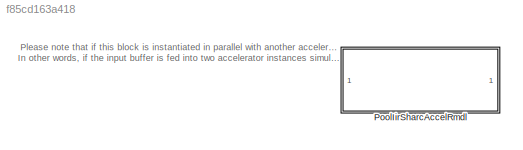
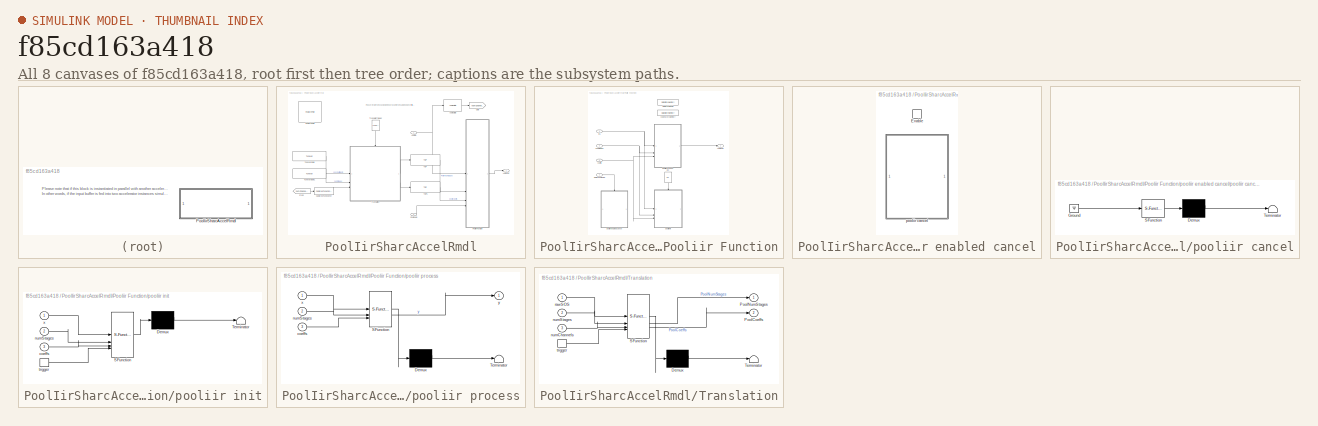
[diagram: thumbnail index - all 8 canvases of the model, root first then tree order]
MODEL slx_f85cd163a418
KIND library
CONFIG AbsTol = auto
CONFIG EnableMultiTasking = off
CONFIG FixedStep = auto
CONFIG MaxStep = auto
CONFIG MinStep = auto
CONFIG RelTol = 1e-3
CONFIG SampleTimeConstraint = Unconstrained
CONFIG SolverName = VariableStepAuto
CONFIG StartTime = 0.0
CONFIG StopTime = 10.0
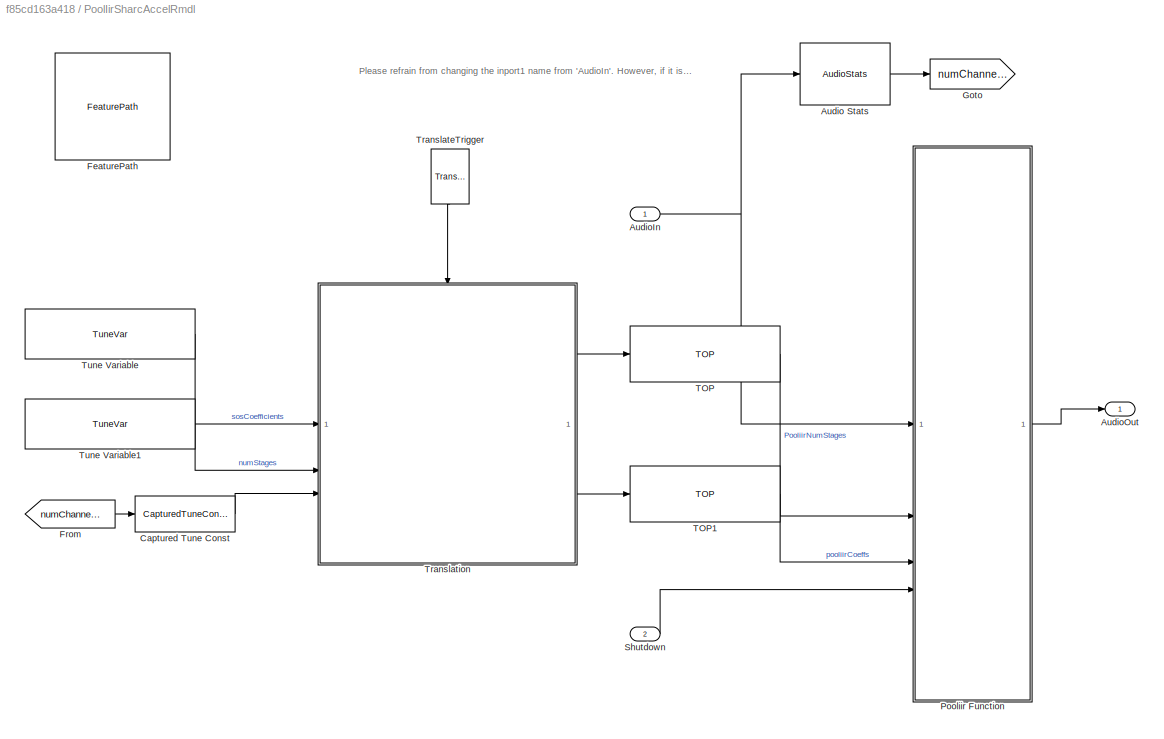
BLOCK [SubSystem] PoolIirSharcAccelRmdl
BLOCK [Reference] PoolIirSharcAccelRmdl/Audio Stats  REF=AudioStats/AudioStats
  SourceBlock = AudioStats/AudioStats
  SourceProductName = Bose Talaria
  SourceType = Talaria Audio Statistics
BLOCK [Inport] PoolIirSharcAccelRmdl/AudioIn
BLOCK [Outport] PoolIirSharcAccelRmdl/AudioOut
  VectorParamsAs1DForOutWhenUnconnected = off
BLOCK [Reference] PoolIirSharcAccelRmdl/Captured Tune Const  REF=TuneVar/CapturedTuneConst
  SourceBlock = TuneVar/CapturedTuneConst
  SourceProductName = Bose Talaria
  SourceType = Talaria Captured Constant
BLOCK [Reference] PoolIirSharcAccelRmdl/FeaturePath  REF=FeaturePath/FeaturePath
  SourceBlock = FeaturePath/FeaturePath
  SourceProductName = Bose Talaria
  SourceType = Talaria Feature Path
BLOCK [From] PoolIirSharcAccelRmdl/From
  GotoTag = numChannels
BLOCK [Goto] PoolIirSharcAccelRmdl/Goto
  GotoTag = numChannels
BLOCK [SubSystem] PoolIirSharcAccelRmdl/Pooliir Function
BLOCK [Outport] PoolIirSharcAccelRmdl/Pooliir Function/Audio Out
  VectorParamsAs1DForOutWhenUnconnected = off
BLOCK [Reference] PoolIirSharcAccelRmdl/Pooliir Function/ITC  REF=ITC/ITC
  NameLocation = left
  SourceBlock = ITC/ITC
  SourceProductName = Bose Talaria
  SourceType = Talaria Initialization Trigger Control
BLOCK [Inport] PoolIirSharcAccelRmdl/Pooliir Function/In1
BLOCK [Inport] PoolIirSharcAccelRmdl/Pooliir Function/RMDL Shutdown
  Port = 4
BLOCK [DataStoreMemory] PoolIirSharcAccelRmdl/Pooliir Function/RMDLshutdown
  DataStoreName = RMDLshutdown
  Dimensions = [1,1]
  LockScale = on
  OutDataTypeStr = uint32
  ShowAdditionalParam = off
  SignalType = real
  WriteAfterWriteMsg = warning
BLOCK [DataStoreMemory] PoolIirSharcAccelRmdl/Pooliir Function/codeWorkMemory
  DataStoreName = codeWorkMemory
  EmbeddedSignalClassName = Blocklib.Signal
  InitialValue = zeros(1,codeWorkMemorySize)
  OutDataTypeStr = single
  ShowAdditionalParam = off
  SignalType = real
  WriteAfterWriteMsg = warning
BLOCK [Inport] PoolIirSharcAccelRmdl/Pooliir Function/coeffs
  Port = 3
BLOCK [Inport] PoolIirSharcAccelRmdl/Pooliir Function/numStages
  Port = 2
BLOCK [SubSystem] PoolIirSharcAccelRmdl/Pooliir Function/pooliir enabled cancel
  TreatAsAtomicUnit = on
BLOCK [EnablePort] PoolIirSharcAccelRmdl/Pooliir Function/pooliir enabled cancel/Enable
BLOCK [SubSystem] PoolIirSharcAccelRmdl/Pooliir Function/pooliir enabled cancel/pooliir cancel
  ErrorFcn = Stateflow.Translate.translate
  PermitHierarchicalResolution = ExplicitOnly
  SFBlockType = MATLAB Function
  TreatAsAtomicUnit = on
BLOCK [Demux] PoolIirSharcAccelRmdl/Pooliir Function/pooliir enabled cancel/pooliir cancel/ Demux 
  Outputs = 1
BLOCK [Ground] PoolIirSharcAccelRmdl/Pooliir Function/pooliir enabled cancel/pooliir cancel/ Ground 
BLOCK [S-Function] PoolIirSharcAccelRmdl/Pooliir Function/pooliir enabled cancel/pooliir cancel/ SFunction 
  EnableBusSupport = off
  FunctionName = sf_sfun
  Parameters = variantSelect
  PortCounts = [1 1]
  SFcnIsStateOwnerBlock = off
  SFunctionDeploymentMode = off
  Tag = Stateflow S-Function 5
BLOCK [Terminator] PoolIirSharcAccelRmdl/Pooliir Function/pooliir enabled cancel/pooliir cancel/ Terminator 
BLOCK [SubSystem] PoolIirSharcAccelRmdl/Pooliir Function/pooliir init
  ErrorFcn = Stateflow.Translate.translate
  PermitHierarchicalResolution = ExplicitOnly
  RTWFcnName = foo
  RTWFcnNameOpts = User specified
  SFBlockType = MATLAB Function
  TreatAsAtomicUnit = on
BLOCK [Demux] PoolIirSharcAccelRmdl/Pooliir Function/pooliir init/ Demux 
  Outputs = 1
BLOCK [S-Function] PoolIirSharcAccelRmdl/Pooliir Function/pooliir init/ SFunction 
  EnableBusSupport = off
  FunctionName = sf_sfun
  Parameters = variantSelect
  PortCounts = [4 1]
  SFcnIsStateOwnerBlock = off
  SFunctionDeploymentMode = off
  Tag = Stateflow S-Function 1
BLOCK [Terminator] PoolIirSharcAccelRmdl/Pooliir Function/pooliir init/ Terminator 
BLOCK [Inport] PoolIirSharcAccelRmdl/Pooliir Function/pooliir init/coeffs
  Port = 3
BLOCK [Inport] PoolIirSharcAccelRmdl/Pooliir Function/pooliir init/numStages
  Port = 2
BLOCK [TriggerPort] PoolIirSharcAccelRmdl/Pooliir Function/pooliir init/trigger
  ShowOutputPort = on
  StatesWhenEnabling = held
  TriggerType = function-call
  VariantControl = (inherit)
BLOCK [Inport] PoolIirSharcAccelRmdl/Pooliir Function/pooliir init/x
BLOCK [SubSystem] PoolIirSharcAccelRmdl/Pooliir Function/pooliir process
  ErrorFcn = Stateflow.Translate.translate
  PermitHierarchicalResolution = ExplicitOnly
  SFBlockType = MATLAB Function
  TreatAsAtomicUnit = on
BLOCK [Demux] PoolIirSharcAccelRmdl/Pooliir Function/pooliir process/ Demux 
  Outputs = 1
BLOCK [S-Function] PoolIirSharcAccelRmdl/Pooliir Function/pooliir process/ SFunction 
  EnableBusSupport = off
  FunctionName = sf_sfun
  Parameters = variantSelect
  PortCounts = [3 2]
  SFcnIsStateOwnerBlock = off
  SFunctionDeploymentMode = off
  Tag = Stateflow S-Function 2
BLOCK [Terminator] PoolIirSharcAccelRmdl/Pooliir Function/pooliir process/ Terminator 
BLOCK [Inport] PoolIirSharcAccelRmdl/Pooliir Function/pooliir process/coeffs
  Port = 3
BLOCK [Inport] PoolIirSharcAccelRmdl/Pooliir Function/pooliir process/numStages
  Port = 2
BLOCK [Inport] PoolIirSharcAccelRmdl/Pooliir Function/pooliir process/x
BLOCK [Outport] PoolIirSharcAccelRmdl/Pooliir Function/pooliir process/y
  VectorParamsAs1DForOutWhenUnconnected = off
BLOCK [Inport] PoolIirSharcAccelRmdl/Shutdown
  Port = 2
BLOCK [Reference] PoolIirSharcAccelRmdl/TOP  REF=TOP/TOP
  SourceBlock = TOP/TOP
  SourceProductName = Bose Talaria
  SourceType = Talaria Target Overlay Parameter
BLOCK [Reference] PoolIirSharcAccelRmdl/TOP1  REF=TOP/TOP
  SourceBlock = TOP/TOP
  SourceProductName = Bose Talaria
  SourceType = Talaria Target Overlay Parameter
BLOCK [Reference] PoolIirSharcAccelRmdl/TranslateTrigger  REF=TuneVar/TranslateTrigger
  NameLocation = left
  SourceBlock = TuneVar/TranslateTrigger
  SourceProductName = Bose Talaria
  SourceType = Talaria Translate Trigger
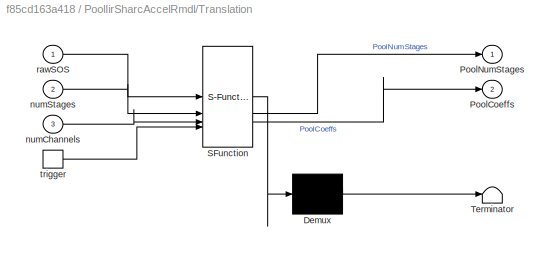
BLOCK [SubSystem] PoolIirSharcAccelRmdl/Translation
  ErrorFcn = Stateflow.Translate.translate
  PermitHierarchicalResolution = ExplicitOnly
  SFBlockType = MATLAB Function
  TreatAsAtomicUnit = on
BLOCK [Demux] PoolIirSharcAccelRmdl/Translation/ Demux 
  Outputs = 1
BLOCK [S-Function] PoolIirSharcAccelRmdl/Translation/ SFunction 
  EnableBusSupport = off
  FunctionName = sf_sfun
  Parameters = maxNumStages,variantSelect
  PortCounts = [4 3]
  SFcnIsStateOwnerBlock = off
  SFunctionDeploymentMode = off
  Tag = Stateflow S-Function 4
BLOCK [Terminator] PoolIirSharcAccelRmdl/Translation/ Terminator 
BLOCK [Outport] PoolIirSharcAccelRmdl/Translation/PoolCoeffs
  Port = 2
  VectorParamsAs1DForOutWhenUnconnected = off
BLOCK [Outport] PoolIirSharcAccelRmdl/Translation/PoolNumStages
  VectorParamsAs1DForOutWhenUnconnected = off
BLOCK [Inport] PoolIirSharcAccelRmdl/Translation/numChannels
  Port = 3
BLOCK [Inport] PoolIirSharcAccelRmdl/Translation/numStages
  Port = 2
BLOCK [Inport] PoolIirSharcAccelRmdl/Translation/rawSOS
BLOCK [TriggerPort] PoolIirSharcAccelRmdl/Translation/trigger
  ShowOutputPort = on
  StatesWhenEnabling = held
  TriggerType = function-call
  VariantControl = (inherit)
BLOCK [Reference] PoolIirSharcAccelRmdl/Tune Variable  REF=TuneVar/TuneVar
  SourceBlock = TuneVar/TuneVar
  SourceProductName = Bose Talaria
  SourceType = Talaria Tune Variable
BLOCK [Reference] PoolIirSharcAccelRmdl/Tune Variable1  REF=TuneVar/TuneVar
  SourceBlock = TuneVar/TuneVar
  SourceProductName = Bose Talaria
  SourceType = Talaria Tune Variable
ANNOTATION (root): Please note that if this block is instantiated in parallel with another accelerator instance (FIR/IIR), it would result in redundancy. In other words, if the input buffer is fed into two accelerator instances simultaneously, it would result in the creation of a duplicate buffer to have unique input buffer for each accelerator instance.
ANNOTATION PoolIirSharcAccelRmdl: Please refrain from changing the inport1 name from 'AudioIn'. However, if it is unavoidable, please update the code at line 53 in PooliirAccelMask.m and also update the port names for the blocks that use PooliirAccelMask.m (Currently, only the SharcAccel variants of PoolIir, PoolIirTunable and PooliirAccelRmdl block use that.)
CHART PoolIirSharcAccelRmdl/Pooliir Function/pooliir init states=1 transitions=1
  STATE_LABEL 'eML_blk_kernel()'
  STATE_LABEL 'SCRIPT:\nfunction pooliir_init(x, numStages, coeffs, variantSelect)\n% Process function for Pooliir\n%\n% Parameters:\n%   x:              input channels [frame size x number of inputs]\n%   numStages:      coefficient sets [total filter lengths x 1]\n%   coeffs:         array of filter lengths [number of filters x 1]\n%\n% Global parameters:\n%   codeWorkMemory: working memory set up during roommode reset/...<+1629ch>'
CHART PoolIirSharcAccelRmdl/Pooliir Function/pooliir process states=1 transitions=1
  STATE_LABEL 'eML_blk_kernel()'
  STATE_LABEL 'SCRIPT:\nfunction y = pooliir_process(x, numStages, coeffs, variantSelect)\n% Process function for Pooliir\n%\n% Parameters:\n%   x:              input channels [frame size x number of inputs]\n%   numStages:      coefficient sets [total filter lengths x 1]\n%   coeffs:         array of filter lengths [number of filters x 1]\n%\n% Global parameters:\n%   codeWorkMemory: working memory set up during roommode...<+1556ch>'
CHART PoolIirSharcAccelRmdl/Translation states=1 transitions=1
  STATE_LABEL 'eML_blk_kernel()'
  STATE_LABEL "SCRIPT:\nfunction [PoolNumStages, PoolCoeffs] = pooliirTranslation(rawSOS, numStages, numChannels, maxNumStages, variantSelect)\n% Translation from raw SOS for pool SOS\n\n% Some build time sanity size checking before calling the translation\nif numel(numStages.Value) ~= numChannels\n    error('Size of num stages has to match number of input channels')\nend\nif rawSOS.Size(2) ~= 6\n    error ('Coefficient ...<+522ch>"
CHART PoolIirSharcAccelRmdl/Pooliir Function/pooliir enabled cancel/pooliir cancel states=1 transitions=1
  STATE_LABEL 'eML_blk_kernel()'
  STATE_LABEL 'SCRIPT:\nfunction pooliir_cancel(variantSelect)\n\n% IIR accelerator function stops step/process function from running on each\n% frame and cancels IIR accelerator task if currently active.\n% \n% Parameters:\n%   None\n%\n% Global parameters:\n%   codeWorkMemory: Working memory set up during roommode reset/init CRL\n%                   function call [1 x codeWorkMemorySize]\n%   RMDLshutdown: Flag to indicat...<+1183ch>'
CHART  states=0 transitions=0
CHART  states=0 transitions=0
CHART  states=0 transitions=0
CHART  states=0 transitions=0
